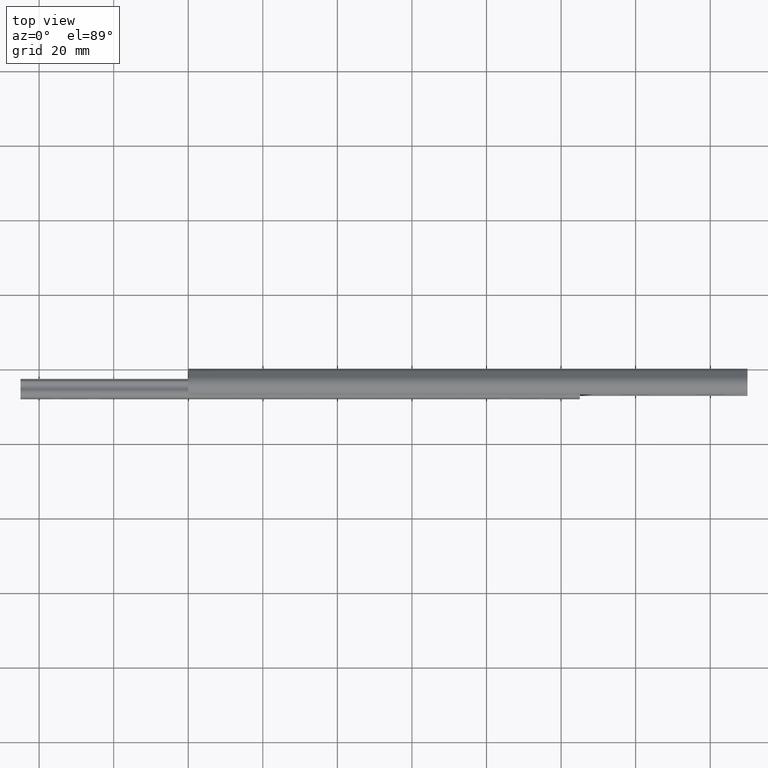
[diagram: clean part render]
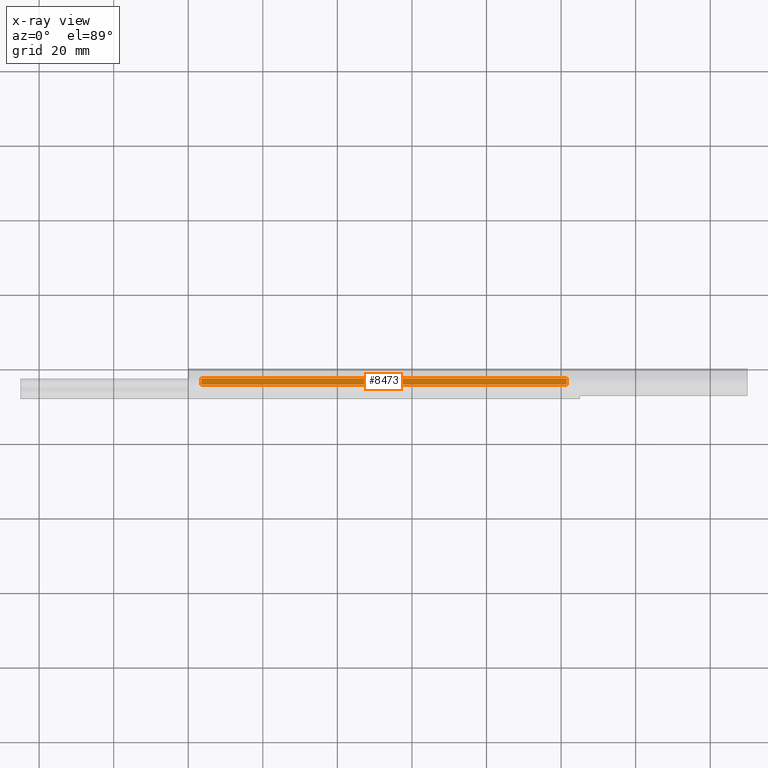
[diagram: x-ray — body ghosted, one internal face saturated and labeled with its STEP entity id]
A machine part, top view, then the same camera in x-ray: the body is ghosted and one INTERNAL B-rep face — a face not visible from any outside direction — is saturated and labeled: STEP entity #8473.
In plain terms, the highlighted face is a freeform B-spline surface patch.
Its self-contained STEP definition (entity closure, byte-faithful):
#8026=CARTESIAN_POINT('',(8.200000000000001,-2.399999999999920,-4.483141138549110));
#8027=VERTEX_POINT('',#8026);
#8033=CARTESIAN_POINT('',(8.200000000000001,-4.169784154915675,-3.844214388932865));
#8034=VERTEX_POINT('',#8033);
#8035=CARTESIAN_POINT('',(8.200000000000001,-2.399999999999920,-4.483141138549110));
#8036=CARTESIAN_POINT('',(8.200000000000001,-4.169784154915675,-3.844214388932865));
#8037=QUASI_UNIFORM_CURVE('',1,(#8035,#8036),.UNSPECIFIED.,.F.,.U.);
#8038=EDGE_CURVE('',#8027,#8034,#8037,.T.);
#8142=CARTESIAN_POINT('',(106.200000000000000,-4.169784154915675,-3.844214388932865));
#8143=VERTEX_POINT('',#8142);
#8157=CARTESIAN_POINT('',(106.200000000000000,-2.399999999999920,-4.483141138549110));
#8158=VERTEX_POINT('',#8157);
#8159=CARTESIAN_POINT('',(106.200000000000000,-2.399999999999920,-4.483141138549110));
#8160=CARTESIAN_POINT('',(106.200000000000000,-4.169784154915675,-3.844214388932865));
#8161=QUASI_UNIFORM_CURVE('',1,(#8159,#8160),.UNSPECIFIED.,.F.,.U.);
#8162=EDGE_CURVE('',#8158,#8143,#8161,.T.);
#8448=CARTESIAN_POINT('',(106.200000000000000,-4.169784154915675,-3.844214388932865));
#8449=CARTESIAN_POINT('',(8.200000000000001,-4.169784154915675,-3.844214388932865));
#8450=QUASI_UNIFORM_CURVE('',1,(#8448,#8449),.UNSPECIFIED.,.F.,.U.);
#8451=EDGE_CURVE('',#8143,#8034,#8450,.T.);
#8458=CARTESIAN_POINT('',(3.304899620113970,-4.258184780633283,-3.812300031299530));
#8459=CARTESIAN_POINT('',(3.304899620113970,-2.311599374282313,-4.515055496182447));
#8460=CARTESIAN_POINT('',(111.095095122756400,-4.258184780633283,-3.812300031299530));
#8461=CARTESIAN_POINT('',(111.095095122756400,-2.311599374282313,-4.515055496182447));
#8462=B_SPLINE_SURFACE_WITH_KNOTS('',1,1,((#8458,#8460),(#8459,#8461)),.UNSPECIFIED.,.F.,.F.,.U.,(2,2),(2,2),(0.0,2.069555504846724),(0.0,107.790195502642400),.UNSPECIFIED.);
#8463=ORIENTED_EDGE('',*,*,#8038,.F.);
#8464=CARTESIAN_POINT('',(106.200000000000000,-2.399999999999920,-4.483141138549110));
#8465=CARTESIAN_POINT('',(8.200000000000001,-2.399999999999920,-4.483141138549110));
#8466=QUASI_UNIFORM_CURVE('',1,(#8464,#8465),.UNSPECIFIED.,.F.,.U.);
#8467=EDGE_CURVE('',#8158,#8027,#8466,.T.);
#8468=ORIENTED_EDGE('',*,*,#8467,.F.);
#8469=ORIENTED_EDGE('',*,*,#8162,.T.);
#8470=ORIENTED_EDGE('',*,*,#8451,.T.);
#8471=EDGE_LOOP('',(#8463,#8468,#8469,#8470));
#8472=FACE_OUTER_BOUND('',#8471,.T.);
#8473=ADVANCED_FACE('',(#8472),#8462,.T.);